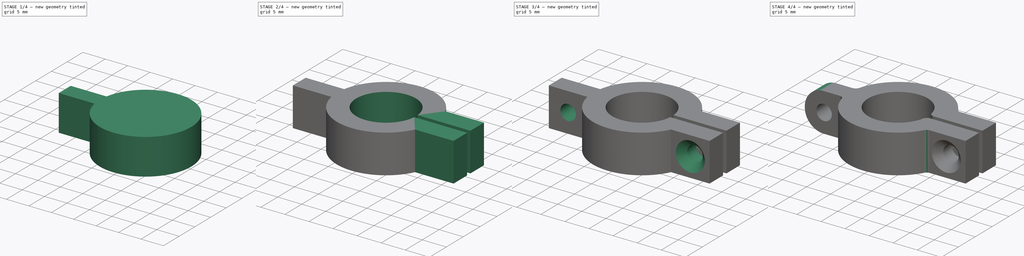
[diagram: build sequence overview — one tinted view per stage of 4, left to right]
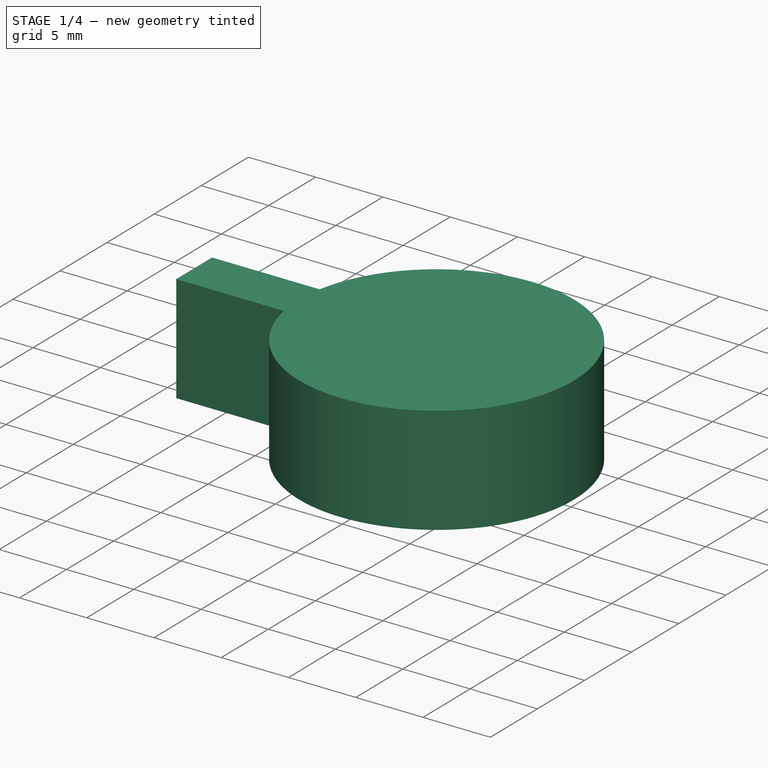
[diagram: stage 1 of 4 — iso view after this stage's code; geometry added in this stage tinted green]
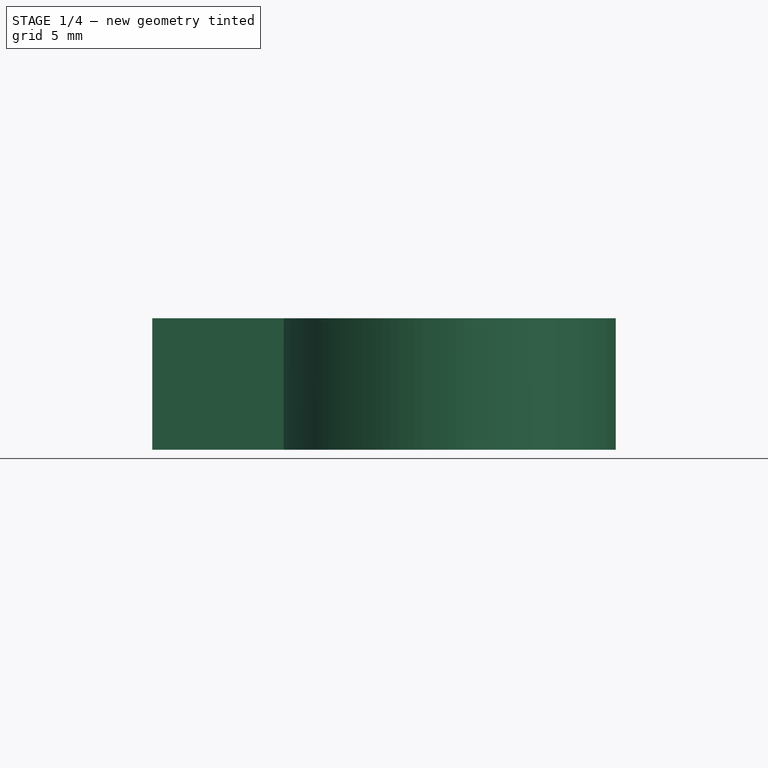
[diagram: stage 1 of 4 — front view after this stage's code; geometry added in this stage tinted green]
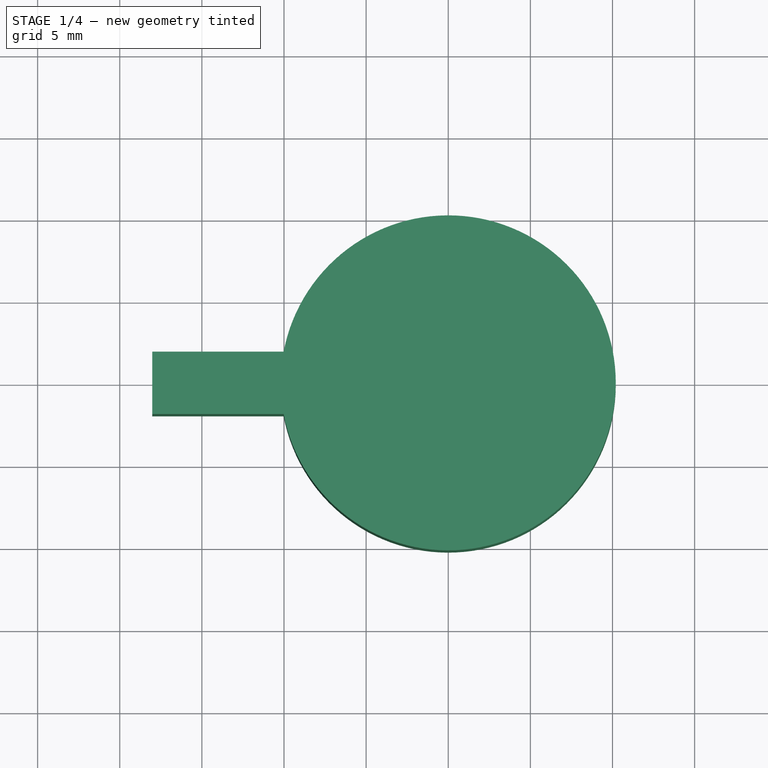
[diagram: stage 1 of 4 — top view after this stage's code; geometry added in this stage tinted green]
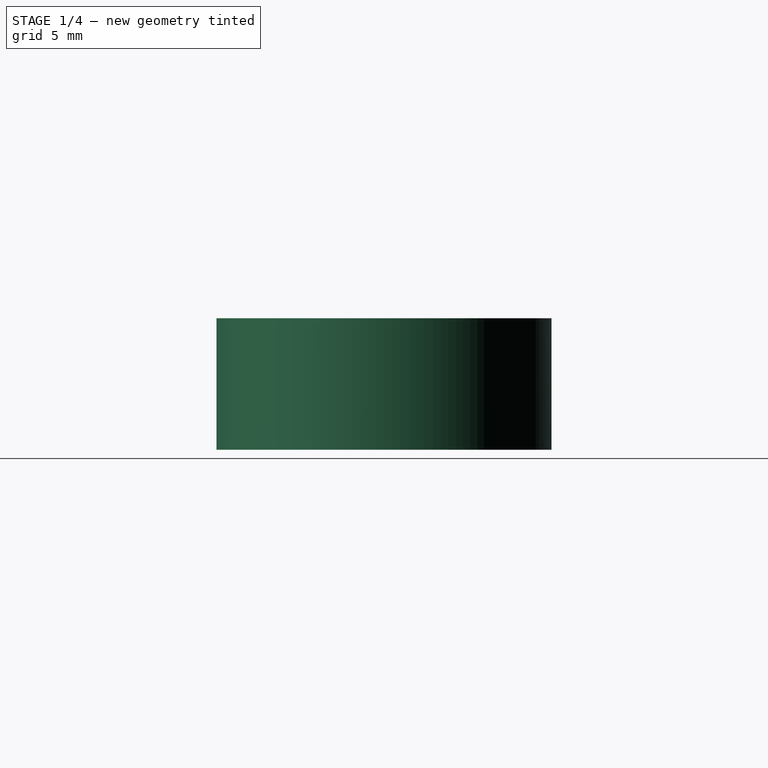
[diagram: stage 1 of 4 — right view after this stage's code; geometry added in this stage tinted green]
FCSTD DOCUMENT  (FreeCAD 1.0R39109 (Git))
Label: laser_holder
License: All rights reserved
LicenseURL: https://en.wikipedia.org/wiki/All_rights_reserved
objects: Sketcher::SketchObject×7, PartDesign::Pad×3, PartDesign::Pocket×3, PartDesign::Fillet×2, Spreadsheet::Sheet×1, PartDesign::Hole×1, PartDesign::Body×1
note: 42 computed .brp shape members not serialized (recipe doc carries the construction recipe); baked Part::Feature solids carry a one-line shape summary decoded from their .brp

FEATURE [Spreadsheet::Sheet] Spreadsheet  label="settings"
  cells = A1='Wall thickness; B1(mount_wall_thi)=4; C1='Laser dia; D1(laser_dia)=12.4; E1='ear hole diameter; F1(ear_hole_dia)=3.2; A2='Mount height; B2(mount_high)=8; E2='ear hex dia thickness; F2(hex_flat_thi)=5.8; A3='Ear thickness; B3(ear_thi)=3.8; E3='ear hex deep; F3(hex_dep)=2; A4='Ear length; B4(ear_len)=8; E4='ear hole distance; F4(ear_hole_dist)=4; A5='ear rotation fillet; B5(ear_rotation_fillet)=3.9; A6='clamp ear thickness; B6(clamp_ear_thi)=4; A7='clamp gap; B7(clamp_gap)=1; A8='clamp ear length; B8(clamp_ear_len)=8; A9='Ear fillets; B9(ear_fillet)=1; A13='Calculations; A14='mount diameter; B14(mount_dia)==mount_wall_thi * 2 + laser_dia; A15='total clamp thickness; B15(clamp_total_thi)==clamp_ear_thi * 2 + clamp_gap
FEATURE [Sketcher::SketchObject] Sketch
  ArcFitTolerance = 1e-06
  AttachmentSupport = -> [XY_Plane]
  FullyConstrained = true
  MakeInternals = false
  MapMode = 5
  expr: Constraints[1] = Spreadsheet.mount_dia
  sketch-geometry (1):
    g0: Circle CenterX=0 CenterY=0 CenterZ=0 NormalX=0 NormalY=0 NormalZ=1 AngleXU=0 Radius=10.2
  constraints (2):
    c: Coincident(g0,g-1)
    c: Diameter(g0) = 20.4
FEATURE [PartDesign::Pad] Pad  label="laser_holder"
  Direction = (0,0,1)
  Length = 8
  Length2 = 10
  Profile = -> Sketch
  ReferenceAxis = -> Sketch [N_Axis]
  Refine = true
  Suppressed = false
  Type = 0
  expr: Length = Spreadsheet.mount_high
FEATURE [Sketcher::SketchObject] Sketch002
  ArcFitTolerance = 1e-06
  AttachmentSupport = -> [XY_Plane]
  FullyConstrained = true
  MakeInternals = false
  MapMode = 5
  expr: Constraints[12] = Spreadsheet.mount_dia
  expr: Constraints[1] = Spreadsheet.ear_thi
  expr: Constraints[9] = Spreadsheet.ear_len
  sketch-geometry (5):
    g0: LineSegment StartX=-10.0215 StartY=1.9 StartZ=0 EndX=-10.0215 EndY=-1.9 EndZ=0
    g1: LineSegment StartX=-10.0215 StartY=1.9 StartZ=0 EndX=-18.0215 EndY=1.9 EndZ=0
    g2: LineSegment StartX=-10.0215 StartY=-1.9 StartZ=0 EndX=-18.0215 EndY=-1.9 EndZ=0
    g3: LineSegment StartX=-18.0215 StartY=1.9 StartZ=0 EndX=-18.0215 EndY=-1.9 EndZ=0
    g4: Circle [constr] CenterX=0 CenterY=0 CenterZ=0 NormalX=0 NormalY=0 NormalZ=1 AngleXU=0 Radius=10.2
  constraints (13):
    c: Symmetric(g0,g0,g-1)
    c: DistanceY(g0,g0) = 3.8
    c: Coincident(g1,g0)
    c: Horizontal(g1)
    c: Coincident(g2,g0)
    c: Horizontal(g2)
    c: Coincident(g3,g1)
    c: Coincident(g3,g2)
    c: Vertical(g3)
    c: DistanceX(g2,g2) = 8
    c: Coincident(g4,g-1)
    c: PointOnObject(g0,g4)
    c: Diameter(g4) = 20.4
FEATURE [PartDesign::Pad] Pad001  label="mounting_ear"
  BaseFeature = -> Pad
  Direction = (0,0,1)
  Length = 8
  Length2 = 10
  Profile = -> Sketch002
  ReferenceAxis = -> Sketch002 [N_Axis]
  Refine = true
  Suppressed = false
  Type = 0
  expr: Length = Spreadsheet.mount_high
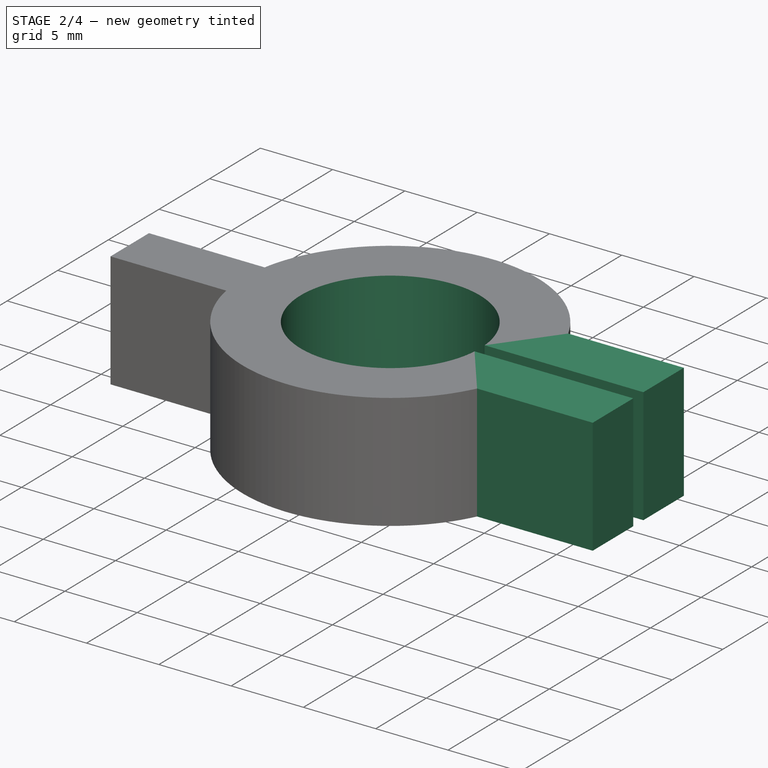
[diagram: stage 2 of 4 — iso view after this stage's code; geometry added in this stage tinted green]
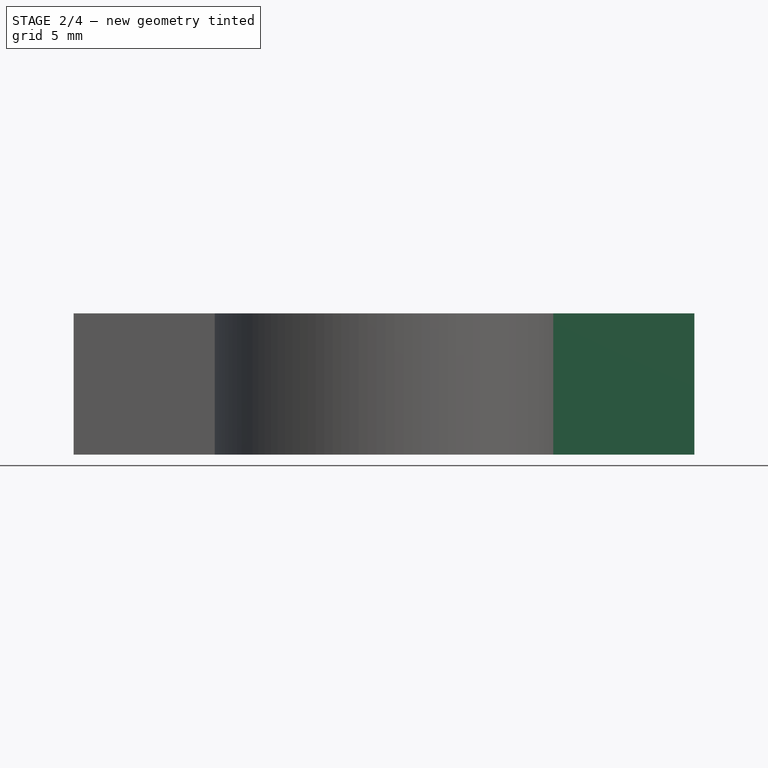
[diagram: stage 2 of 4 — front view after this stage's code; geometry added in this stage tinted green]
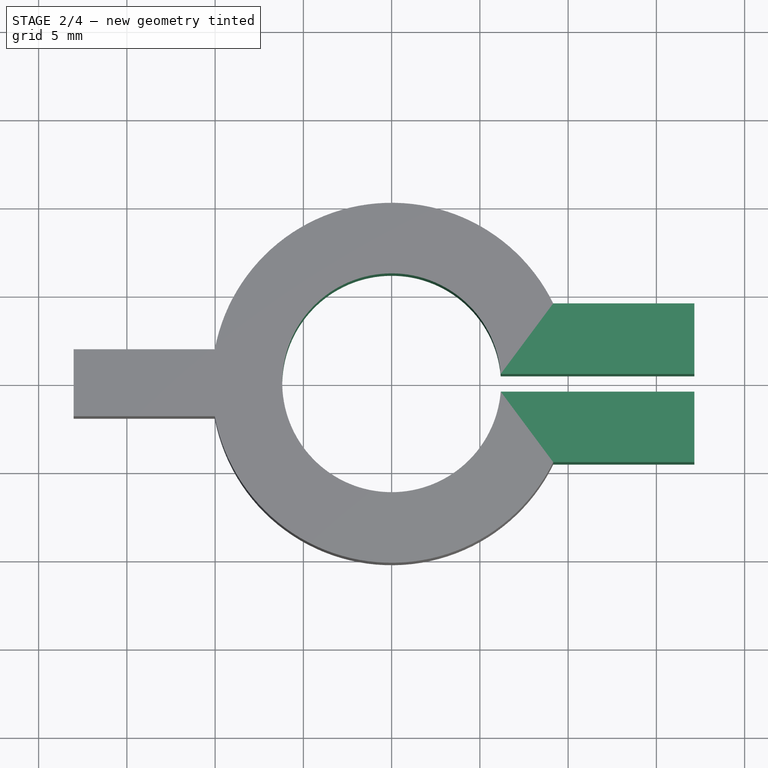
[diagram: stage 2 of 4 — top view after this stage's code; geometry added in this stage tinted green]
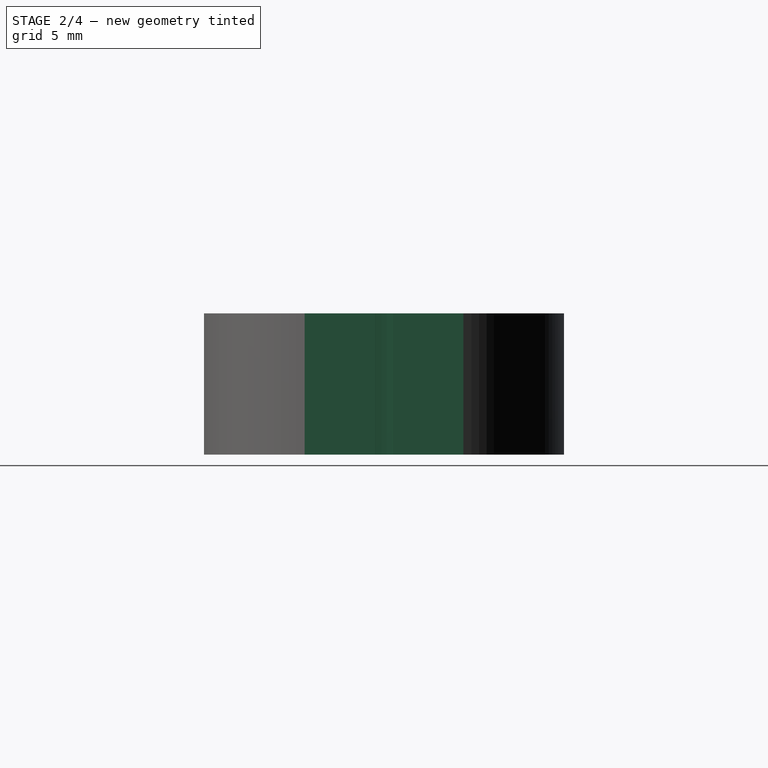
[diagram: stage 2 of 4 — right view after this stage's code; geometry added in this stage tinted green]
FEATURE [Sketcher::SketchObject] Sketch003
  ArcFitTolerance = 1e-06
  AttachmentSupport = -> [XY_Plane]
  ExternalGeometry = -> [Pad001]
  FullyConstrained = true
  MakeInternals = false
  MapMode = 5
  expr: Constraints[10] = Spreadsheet.clamp_ear_len
  expr: Constraints[9] = Spreadsheet.clamp_total_thi
  sketch-geometry (4):
    g0: LineSegment StartX=9.15369 StartY=4.5 StartZ=0 EndX=9.15369 EndY=-4.5 EndZ=0
    g1: LineSegment StartX=9.15369 StartY=-4.5 StartZ=0 EndX=17.1537 EndY=-4.5 EndZ=0
    g2: LineSegment StartX=17.1537 StartY=-4.5 StartZ=0 EndX=17.1537 EndY=4.5 EndZ=0
    g3: LineSegment StartX=17.1537 StartY=4.5 StartZ=0 EndX=9.15369 EndY=4.5 EndZ=0
  constraints (11):
    c: Coincident(g0,g1)
    c: Coincident(g1,g2)
    c: Coincident(g2,g3)
    c: Coincident(g3,g0)
    c: Vertical(g2)
    c: Horizontal(g1)
    c: Horizontal(g3)
    c: PointOnObject(g0,g-3)
    c: Symmetric(g0,g0,g-1)
    c: DistanceY(g0,g0) = 9
    c: DistanceX(g1,g1) = 8
FEATURE [PartDesign::Pad] Pad002  label="clamp_ear"
  BaseFeature = -> Pad001
  Direction = (0,0,1)
  Length = 8
  Length2 = 10
  Profile = -> Sketch003
  ReferenceAxis = -> Sketch003 [N_Axis]
  Refine = true
  Suppressed = false
  Type = 0
  expr: Length = Spreadsheet.mount_high
FEATURE [Sketcher::SketchObject] Sketch004
  ArcFitTolerance = 1e-06
  AttachmentSupport = -> [Pad002]
  ExternalGeometry = -> [Pad002]
  FullyConstrained = true
  MakeInternals = false
  MapMode = 5
  Placement = pos=(0,0,8) rot=(0,0,1;0rad)
  expr: Constraints[1] = Spreadsheet.laser_dia
  expr: Constraints[5] = Spreadsheet.clamp_gap
  sketch-geometry (5):
    g0: ArcOfCircle CenterX=0 CenterY=0 CenterZ=0 NormalX=0 NormalY=0 NormalZ=1 AngleXU=0 Radius=6.2 StartAngle=0.0807328 EndAngle=6.20245
    g1: GeomPoint [constr] X=17.1537 Y=1e-16 Z=0
    g2: LineSegment StartX=17.1537 StartY=-0.5 StartZ=0 EndX=17.1537 EndY=0.5 EndZ=0
    g3: LineSegment StartX=6.17981 StartY=0.5 StartZ=0 EndX=17.1537 EndY=0.5 EndZ=0
    g4: LineSegment StartX=6.17981 StartY=-0.5 StartZ=0 EndX=17.1537 EndY=-0.5 EndZ=0
  constraints (12):
    c: Coincident(g0,g-1)
    c: Diameter(g0) = 12.4
    c: Symmetric(g-3,g-3,g1)
    c: Vertical(g2)
    c: Symmetric(g2,g2,g1)
    c: DistanceY(g2,g2) = 1
    c: Horizontal(g0,g2)
    c: Horizontal(g0,g2)
    c: Coincident(g3,g0)
    c: Coincident(g4,g0)
    c: Coincident(g4,g2)
    c: Coincident(g3,g2)
FEATURE [PartDesign::Pocket] Pocket  label="laser_hole_clamp_gap"
  BaseFeature = -> Pad002
  Direction = (0,0,-1)
  Length = 5
  Length2 = 5
  Profile = -> Sketch004
  ReferenceAxis = -> Sketch004 [N_Axis]
  Refine = true
  Suppressed = false
  Type = 1
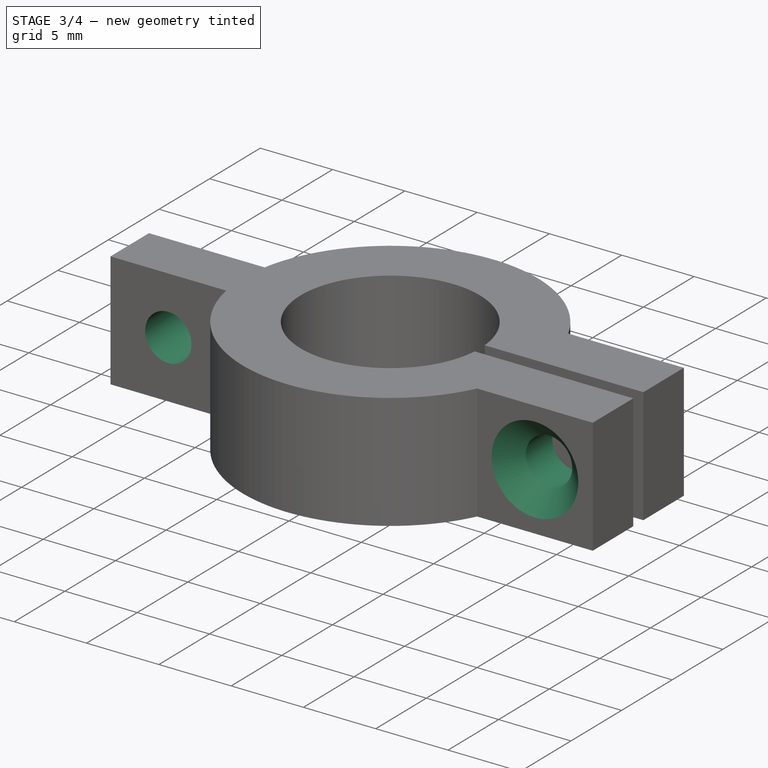
[diagram: stage 3 of 4 — iso view after this stage's code; geometry added in this stage tinted green]
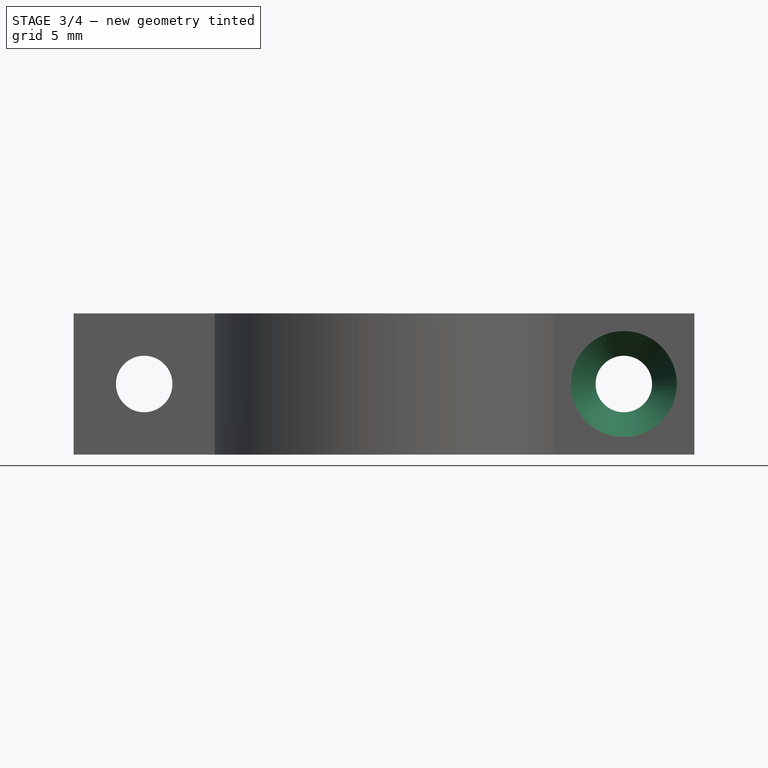
[diagram: stage 3 of 4 — front view after this stage's code; geometry added in this stage tinted green]
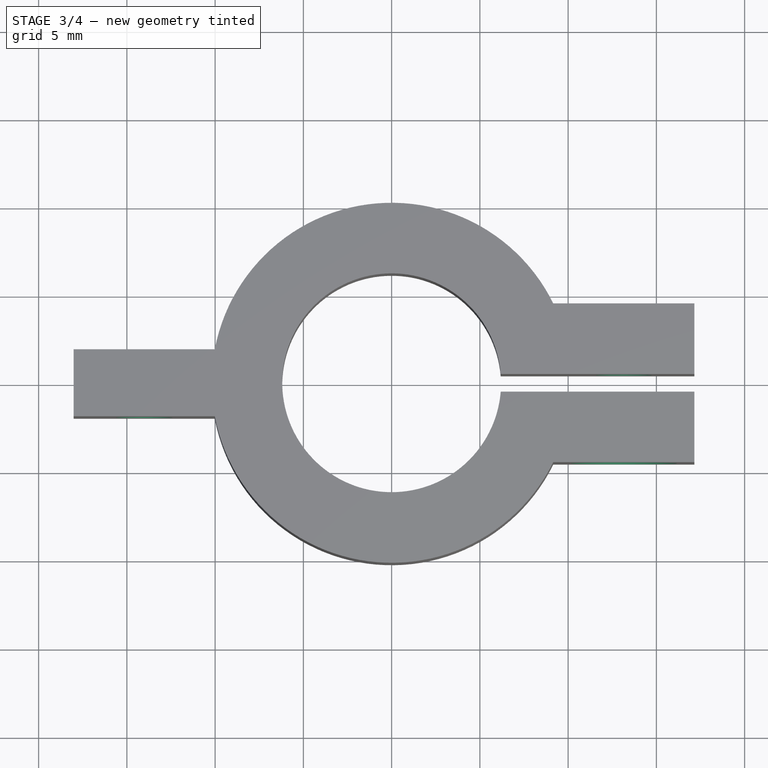
[diagram: stage 3 of 4 — top view after this stage's code; geometry added in this stage tinted green]
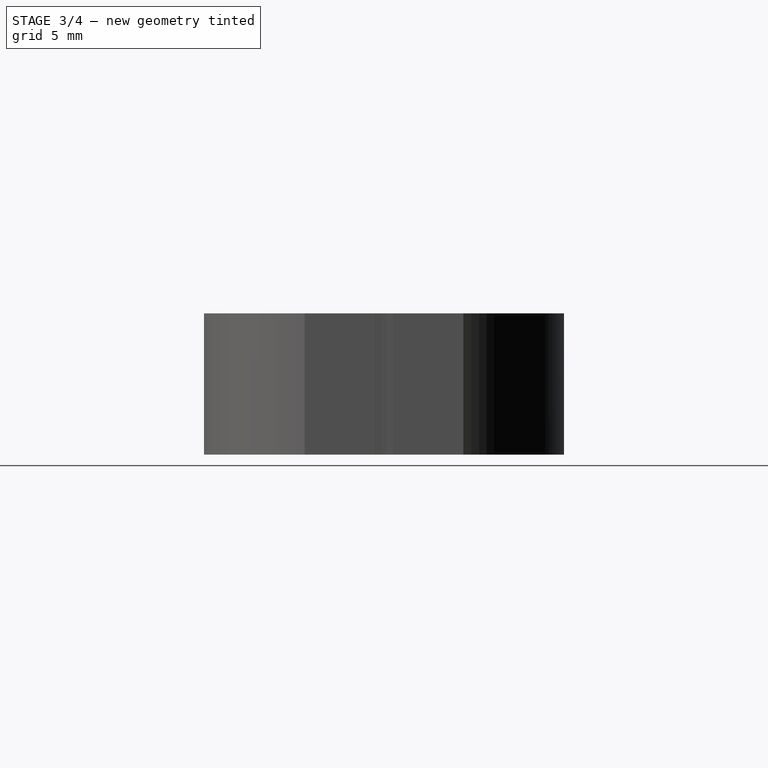
[diagram: stage 3 of 4 — right view after this stage's code; geometry added in this stage tinted green]
FEATURE [Sketcher::SketchObject] Sketch005
  ArcFitTolerance = 1e-06
  AttachmentSupport = -> [Pocket]
  ExternalGeometry = -> [Pocket]
  FullyConstrained = true
  MakeInternals = false
  MapMode = 5
  Placement = pos=(0,-1.9,0) rot=(1,0,0;1.5708rad)
  expr: Constraints[0] = Spreadsheet.ear_hole_dia
  expr: Constraints[2] = Spreadsheet.ear_hole_dist
  sketch-geometry (2):
    g0: Circle CenterX=-14.0215 CenterY=4 CenterZ=0 NormalX=0 NormalY=0 NormalZ=1 AngleXU=0 Radius=1.6
    g1: GeomPoint X=-18.0215 Y=4 Z=0
  constraints (4):
    c: Diameter(g0) = 3.2
    c: Symmetric(g-3,g-4,g1)
    c: DistanceX(g1,g0) = 4
    c: Horizontal(g1,g0)
FEATURE [PartDesign::Pocket] Pocket001  label="ear_hole"
  BaseFeature = -> Pocket
  Direction = (0,1,-2e-16)
  Length = 5
  Length2 = 5
  Profile = -> Sketch005
  ReferenceAxis = -> Sketch005 [N_Axis]
  Refine = true
  Suppressed = false
  Type = 1
FEATURE [Sketcher::SketchObject] Sketch006
  ArcFitTolerance = 1e-06
  AttachmentSupport = -> [Pocket001]
  ExternalGeometry = -> [Pocket001]
  FullyConstrained = true
  MakeInternals = false
  MapMode = 5
  Placement = pos=(0,-4.5,0) rot=(1,0,0;1.5708rad)
  expr: Constraints[1] = Spreadsheet.ear_hole_dia
  sketch-geometry (1):
    g0: Circle CenterX=13.1537 CenterY=4 CenterZ=0 NormalX=0 NormalY=0 NormalZ=1 AngleXU=0 Radius=1.6
  constraints (2):
    c: Symmetric(g-4,g-3,g0)
    c: Diameter(g0) = 3.2
FEATURE [PartDesign::Hole] Hole  label="clamp_hole"
  BaseFeature = -> Pocket001
  CustomThreadClearance = 0
  Depth = 87.132
  DepthType = 1
  Diameter = 3.2
  DrillForDepth = false
  DrillPoint = 1
  DrillPointAngle = 118
  HoleCutCountersinkAngle = 90
  HoleCutCustomValues = false
  HoleCutDepth = 0
  HoleCutDiameter = 6
  HoleCutType = 2
  ModelThread = false
  Profile = -> Sketch006
  Refine = true
  Suppressed = false
  Tapered = false
  TaperedAngle = 90
  ThreadClass = 0
  ThreadDepth = 87.132
  ThreadDepthType = 0
  ThreadDirection = 0
  ThreadFit = 0
  ThreadSize = 0
  ThreadType = 0
  Threaded = false
  UseCustomThreadClearance = false
  expr: Diameter = Spreadsheet.ear_hole_dia
FEATURE [Sketcher::SketchObject] Sketch007
  ArcFitTolerance = 1e-06
  ExternalGeometry = -> [Hole]
  FullyConstrained = true
  MakeInternals = false
  MapMode = 5
  Placement = pos=(0,4.5,0) rot=(0,0.707107,0.707107;3.14159rad)
  expr: Constraints[18] = Spreadsheet.hex_flat_thi
  sketch-geometry (7):
    g0: LineSegment StartX=-9.80506 StartY=4 StartZ=0 EndX=-11.4794 EndY=6.9 EndZ=0
    g1: LineSegment StartX=-11.4794 StartY=6.9 StartZ=0 EndX=-14.828 EndY=6.9 EndZ=0
    g2: LineSegment StartX=-14.828 StartY=6.9 StartZ=0 EndX=-16.5023 EndY=4 EndZ=0
    g3: LineSegment StartX=-16.5023 StartY=4 StartZ=0 EndX=-14.828 EndY=1.1 EndZ=0
    g4: LineSegment StartX=-14.828 StartY=1.1 StartZ=0 EndX=-11.4794 EndY=1.1 EndZ=0
    g5: LineSegment StartX=-11.4794 StartY=1.1 StartZ=0 EndX=-9.80506 EndY=4 EndZ=0
    g6: Circle [constr] CenterX=-13.1537 CenterY=4 CenterZ=0 NormalX=0 NormalY=0 NormalZ=1 AngleXU=0 Radius=3.34863
  constraints (16):
    c: Coincident(g0,g1)
    c: Coincident(g1,g2)
    c: Coincident(g2,g3)
    c: Coincident(g3,g4)
    c: Coincident(g4,g5)
    c: Coincident(g5,g0)
    c: Equal(g0, g1-g5) x5
    c: PointOnObject(g0,g6)
    c: PointOnObject(g1,g6)
    c: PointOnObject(g2,g6)
    c: PointOnObject(g3,g6)
    c: PointOnObject(g4,g6)
    c: PointOnObject(g5,g6)
    c: Horizontal(g1)
    c: DistanceY(g4,g0) = 5.8
    c: Coincident(g6,g-3)
FEATURE [PartDesign::Pocket] Pocket003  label="clamp_hex"
  BaseFeature = -> Hole
  Direction = (-1e-16,-1,2e-16)
  Length = 2
  Length2 = 5
  Profile = -> Sketch007
  ReferenceAxis = -> Sketch007 [N_Axis]
  Refine = true
  Suppressed = false
  Type = 0
  expr: Length = Spreadsheet.hex_dep
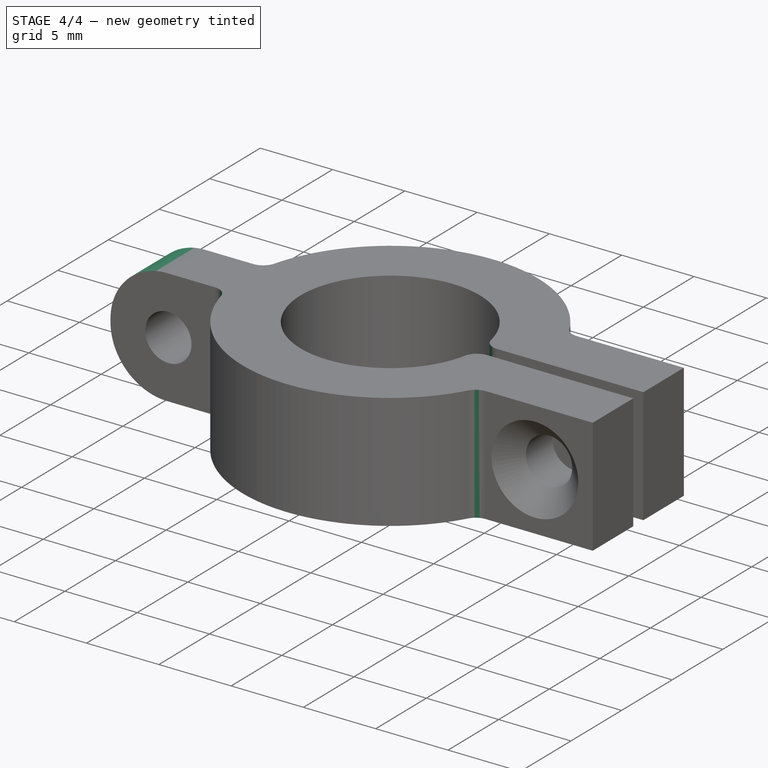
[diagram: stage 4 of 4 — iso view after this stage's code; geometry added in this stage tinted green]
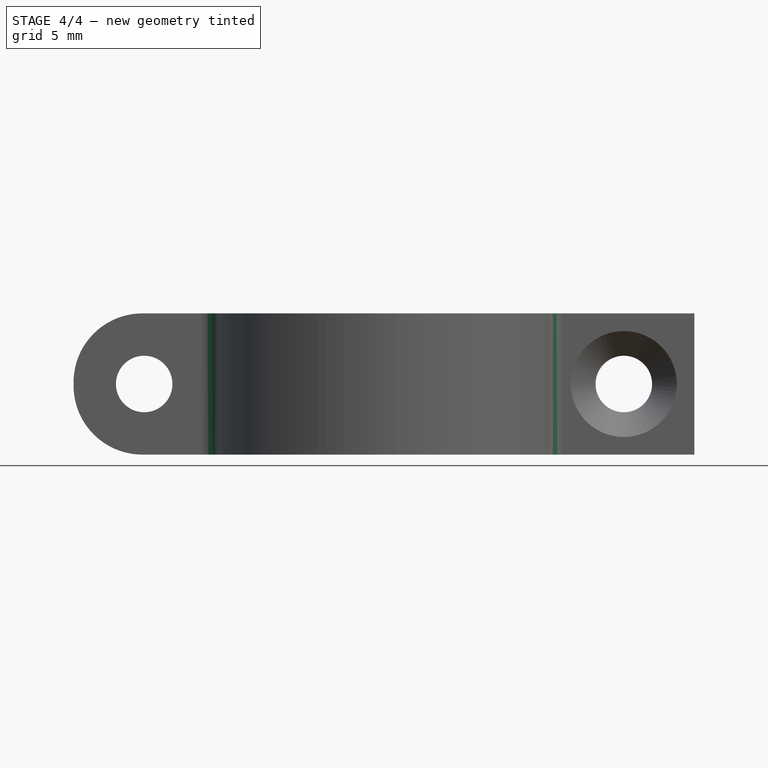
[diagram: stage 4 of 4 — front view after this stage's code; geometry added in this stage tinted green]
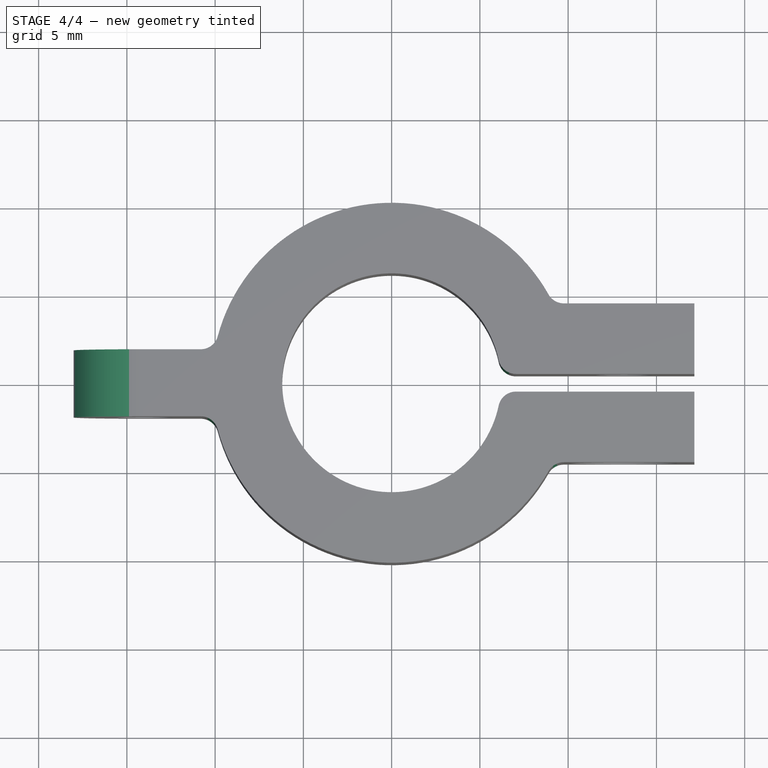
[diagram: stage 4 of 4 — top view after this stage's code; geometry added in this stage tinted green]
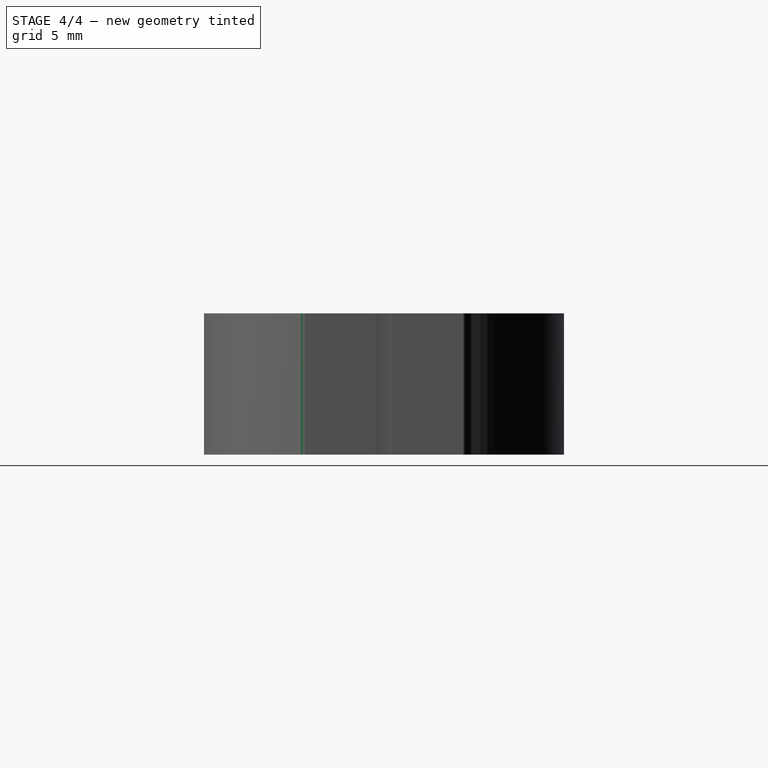
[diagram: stage 4 of 4 — right view after this stage's code; geometry added in this stage tinted green]
FEATURE [PartDesign::Fillet] Fillet  label="rotation_fillet"
  Base = -> Pocket003 [Edge20,Edge17]
  BaseFeature = -> Pocket003
  Radius = 3.9
  Refine = true
  SupportTransform = false
  Suppressed = false
  UseAllEdges = false
  expr: Radius = Spreadsheet.ear_rotation_fillet
FEATURE [PartDesign::Fillet] Fillet001  label="ear_fillets"
  Base = -> Fillet [Edge22,Edge46,Edge38,Edge3,Edge53,Edge50]
  BaseFeature = -> Fillet
  Radius = 1
  Refine = true
  SupportTransform = false
  Suppressed = false
  UseAllEdges = false
  expr: Radius = Spreadsheet.ear_fillet
FEATURE [PartDesign::Body] Body
  AllowCompound = false
  Group = -> [Sketch,Pad,Sketch002,Pad001,Sketch003,Pad002,Sketch004,Pocket,Sketch005,Pocket001,Hole,Sketch006,Sketch007,Pocket003,Fillet,Fillet001]
  Origin = -> Origin
  Tip = -> Fillet001
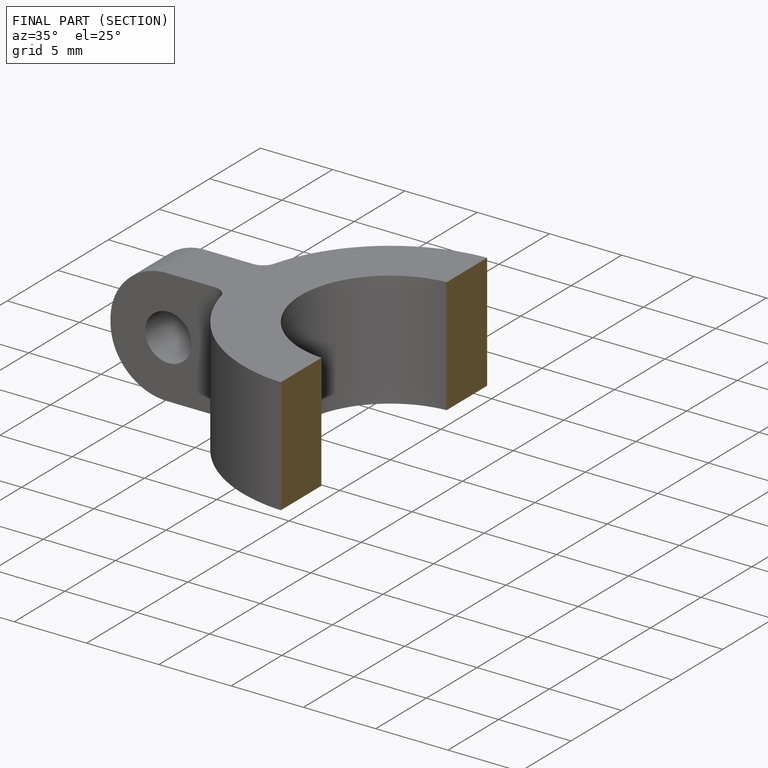
[diagram: finished part — half-section view (interior)]
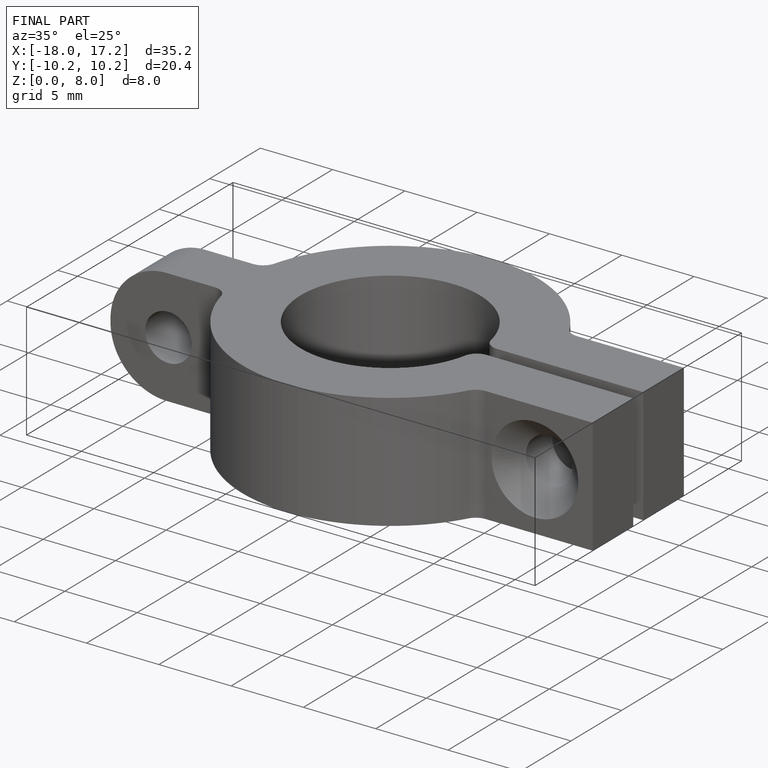
[diagram: finished part — iso view with bounding-box wireframe]
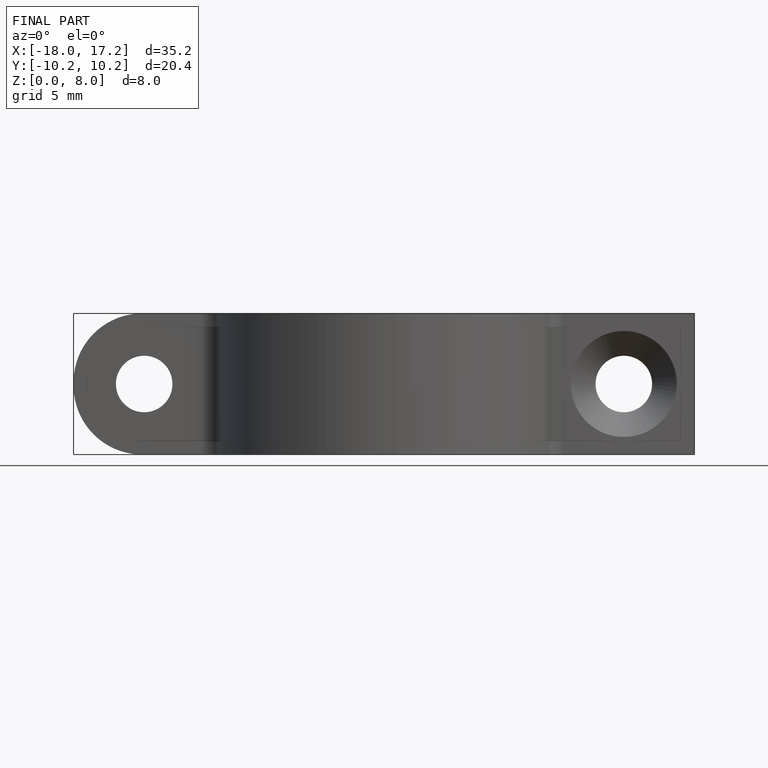
[diagram: finished part — front view with bounding-box wireframe]
